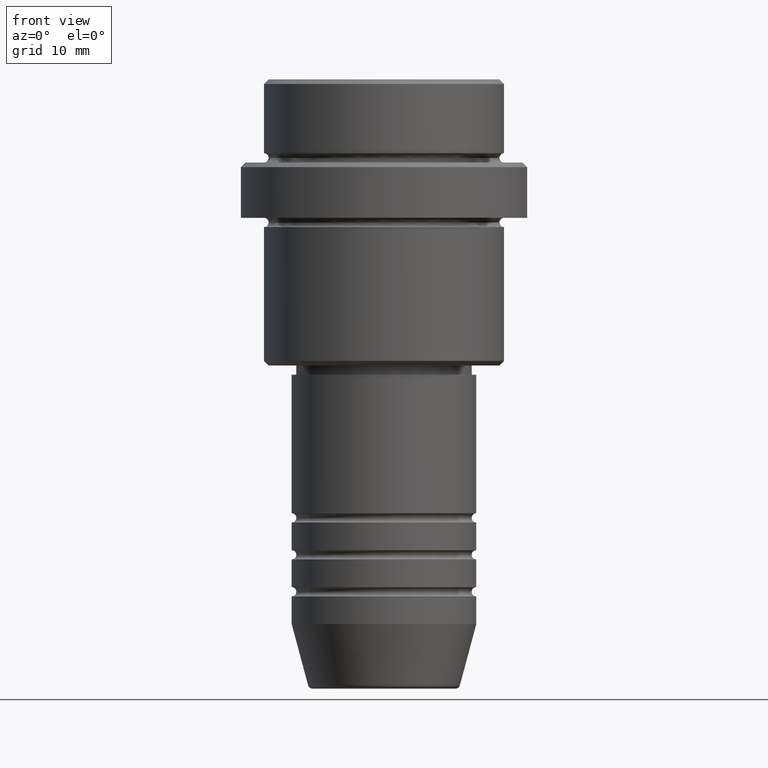
[diagram: clean part render]
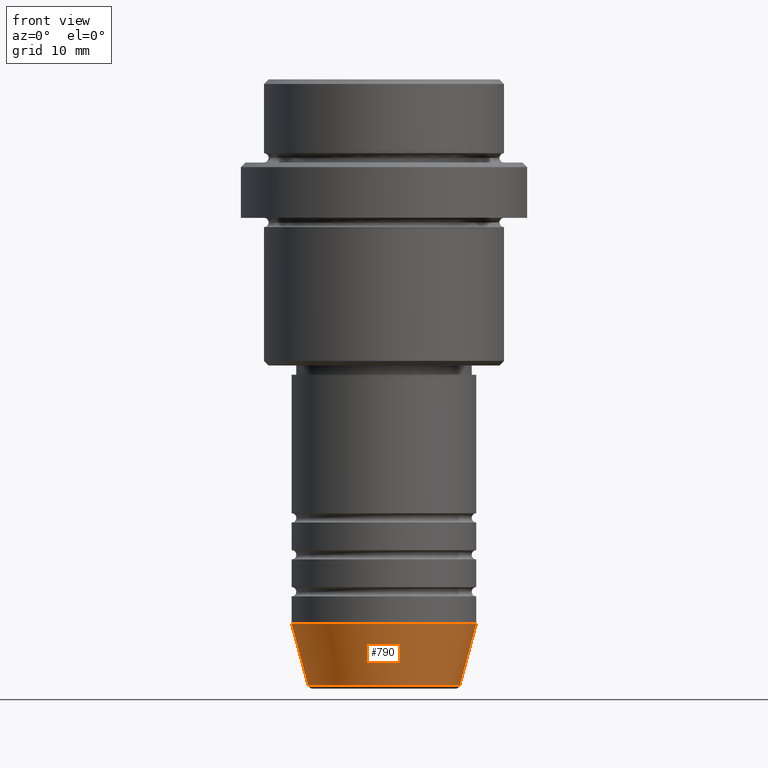
[diagram: same view with one face highlighted and labeled with its STEP entity id]
A machine part, front view. The second image highlights one B-rep face of the part: STEP entity #790.
In plain terms, the highlighted conical surface has half-angle 15 deg.
Its self-contained STEP definition (entity closure, byte-faithful):
#24 = LINE ( 'NONE', #328, #557 ) ;
#105 = CARTESIAN_POINT ( 'NONE',  ( 10.00000000000000000, 0.000000000000000000, -59.00000000000000711 ) ) ;
#120 = CARTESIAN_POINT ( 'NONE',  ( 0.000000000000000000, 0.000000000000000000, -59.00000000000000711 ) ) ;
#129 = AXIS2_PLACEMENT_3D ( 'NONE', #335, #872, #440 ) ;
#244 = AXIS2_PLACEMENT_3D ( 'NONE', #120, #545, #917 ) ;
#250 = VERTEX_POINT ( 'NONE', #421 ) ;
#274 = ORIENTED_EDGE ( 'NONE', *, *, #299, .T. ) ;
#299 = EDGE_CURVE ( 'NONE', #398, #1278, #1362, .T. ) ;
#328 = CARTESIAN_POINT ( 'NONE',  ( -10.00000000000000000, 1.224646799147353256E-15, -59.00000000000000711 ) ) ;
#335 = CARTESIAN_POINT ( 'NONE',  ( 0.000000000000000000, 0.000000000000000000, -65.62940952255127058 ) ) ;
#398 = VERTEX_POINT ( 'NONE', #678 ) ;
#421 = CARTESIAN_POINT ( 'NONE',  ( -10.00000000000000000, 1.224646799147353256E-15, -59.00000000000000711 ) ) ;
#438 = CIRCLE ( 'NONE', #667, 10.00000000000000000 ) ;
#440 = DIRECTION ( 'NONE',  ( 1.000000000000000000, 0.000000000000000000, 0.000000000000000000 ) ) ;
#488 = EDGE_CURVE ( 'NONE', #250, #1012, #438, .T. ) ;
#505 = ORIENTED_EDGE ( 'NONE', *, *, #488, .F. ) ;
#516 = EDGE_LOOP ( 'NONE', ( #1327, #274, #1179, #505 ) ) ;
#545 = DIRECTION ( 'NONE',  ( -0.000000000000000000, -0.000000000000000000, 1.000000000000000000 ) ) ;
#557 = VECTOR ( 'NONE', #1190, 1000.000000000000000 ) ;
#660 = EDGE_CURVE ( 'NONE', #1278, #1012, #875, .T. ) ;
#667 = AXIS2_PLACEMENT_3D ( 'NONE', #1128, #918, #1369 ) ;
#678 = CARTESIAN_POINT ( 'NONE',  ( -8.223655072137191269, 1.115877042642912054E-15, -65.62940952255127058 ) ) ;
#790 = ADVANCED_FACE ( 'NONE', ( #1209 ), #1269, .T. ) ;
#819 = VECTOR ( 'NONE', #963, 1000.000000000000000 ) ;
#872 = DIRECTION ( 'NONE',  ( -0.000000000000000000, -0.000000000000000000, 1.000000000000000000 ) ) ;
#875 = LINE ( 'NONE', #105, #819 ) ;
#917 = DIRECTION ( 'NONE',  ( 1.000000000000000000, 0.000000000000000000, 0.000000000000000000 ) ) ;
#918 = DIRECTION ( 'NONE',  ( -0.000000000000000000, -0.000000000000000000, 1.000000000000000000 ) ) ;
#957 = CARTESIAN_POINT ( 'NONE',  ( 10.00000000000000000, 0.000000000000000000, -59.00000000000000711 ) ) ;
#963 = DIRECTION ( 'NONE',  ( 0.2588190451025213501, 0.000000000000000000, 0.9659258262890680902 ) ) ;
#1012 = VERTEX_POINT ( 'NONE', #957 ) ;
#1128 = CARTESIAN_POINT ( 'NONE',  ( 0.000000000000000000, 0.000000000000000000, -59.00000000000000711 ) ) ;
#1179 = ORIENTED_EDGE ( 'NONE', *, *, #660, .T. ) ;
#1184 = EDGE_CURVE ( 'NONE', #398, #250, #24, .T. ) ;
#1190 = DIRECTION ( 'NONE',  ( -0.2588190451025213501, 3.169619151431772337E-17, 0.9659258262890680902 ) ) ;
#1209 = FACE_OUTER_BOUND ( 'NONE', #516, .T. ) ;
#1235 = CARTESIAN_POINT ( 'NONE',  ( 8.223655072137191269, 0.000000000000000000, -65.62940952255127058 ) ) ;
#1269 = CONICAL_SURFACE ( 'NONE', #244, 10.00000000000000000, 0.2617993877991500740 ) ;
#1278 = VERTEX_POINT ( 'NONE', #1235 ) ;
#1327 = ORIENTED_EDGE ( 'NONE', *, *, #1184, .F. ) ;
#1362 = CIRCLE ( 'NONE', #129, 8.223655072137191269 ) ;
#1369 = DIRECTION ( 'NONE',  ( 1.000000000000000000, 0.000000000000000000, 0.000000000000000000 ) ) ;